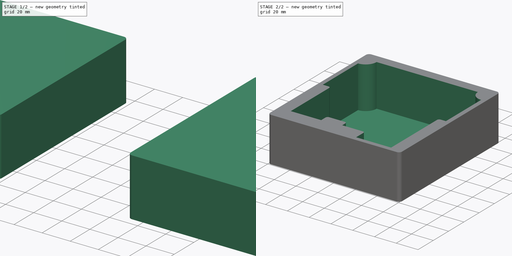
[diagram: build sequence overview — one tinted view per stage of 2, left to right]
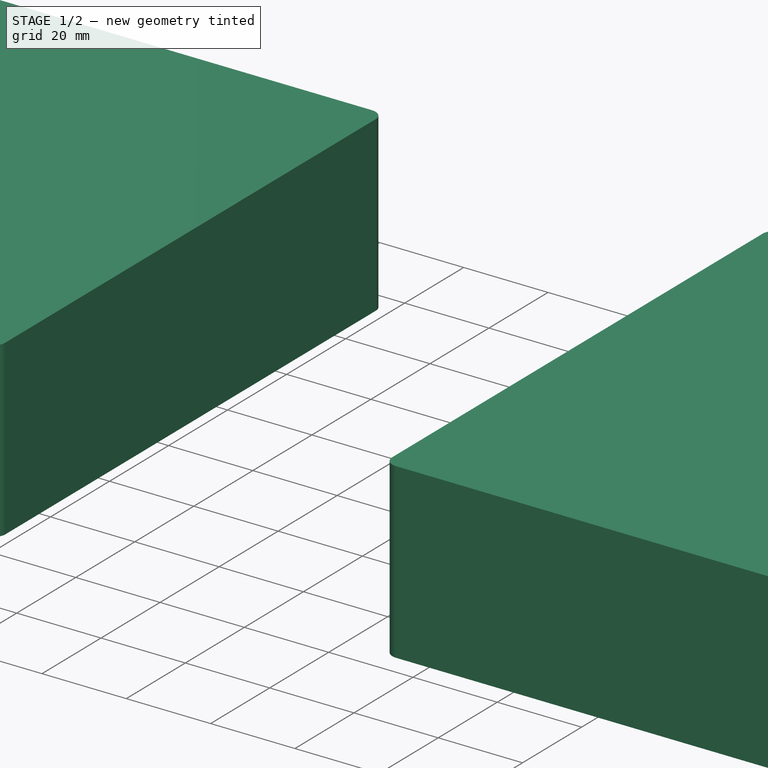
[diagram: stage 1 of 2 — iso view after this stage's code; geometry added in this stage tinted green]
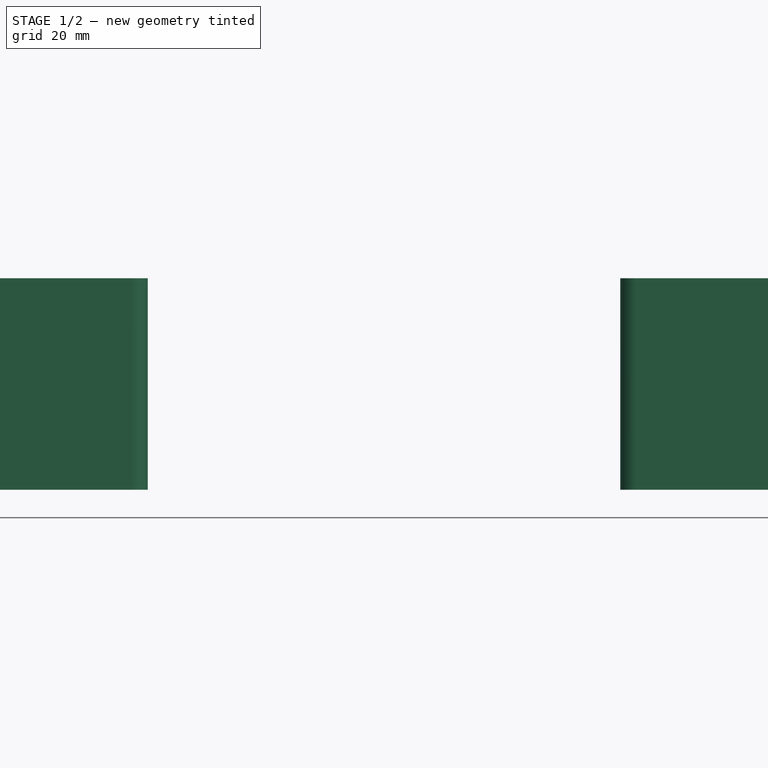
[diagram: stage 1 of 2 — front view after this stage's code; geometry added in this stage tinted green]
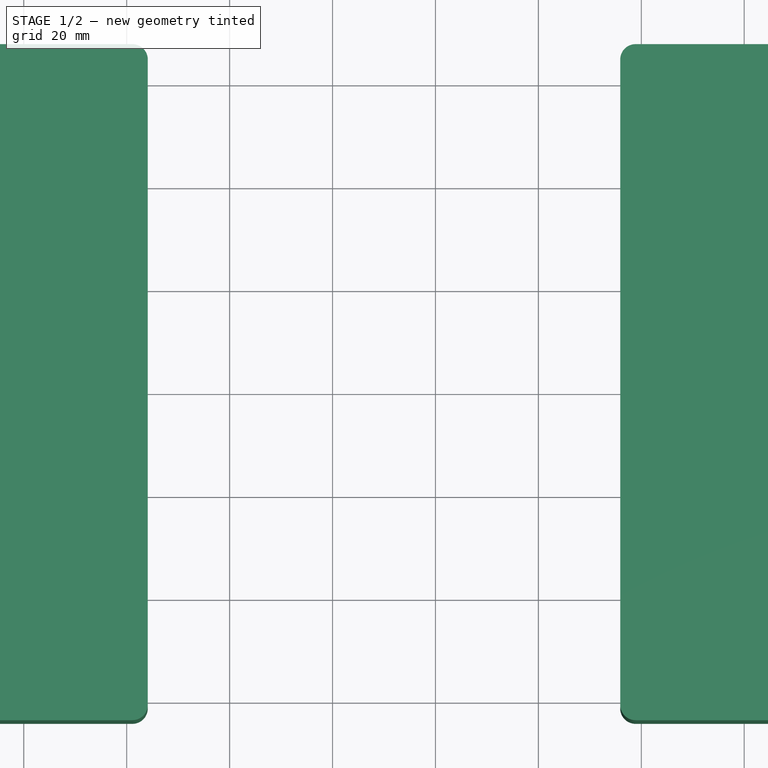
[diagram: stage 1 of 2 — top view after this stage's code; geometry added in this stage tinted green]
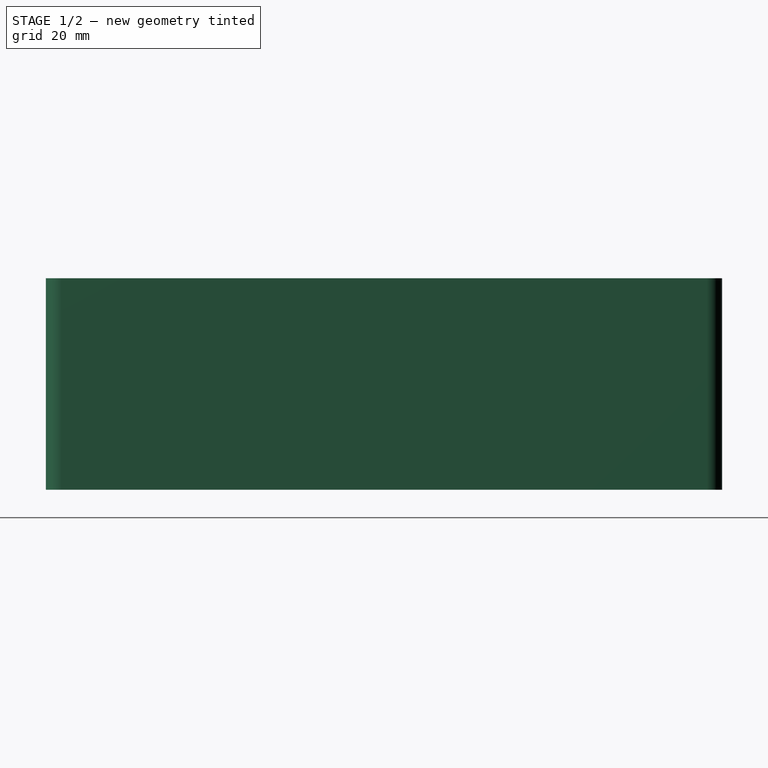
[diagram: stage 1 of 2 — right view after this stage's code; geometry added in this stage tinted green]
FCSTD DOCUMENT  (FreeCAD 1.1R20251104 (Git shallow))
Label: micro-case
License: All rights reserved
LicenseURL: https://en.wikipedia.org/wiki/All_rights_reserved
objects: Sketcher::SketchObject×4, PartDesign::SubShapeBinder×4, PartDesign::Pad×2, PartDesign::Pocket×2, PartDesign::Body×2, App::Point×2, Spreadsheet::Sheet×1
note: 26 computed .brp shape members not serialized (recipe doc carries the construction recipe); baked Part::Feature solids carry a one-line shape summary decoded from their .brp

FEATURE [Sketcher::SketchObject] Sketch  label="Main Cutout"
  ArcFitTolerance = 1e-06
  ExternalTypes = [0]
  FullyConstrained = true
  MakeInternals = false
  MapMode = 5
  expr: Constraints[19] = <<Spreadsheet>>.height + 2 * <<Spreadsheet>>.cutout_margin + <<Spreadsheet>>.cord_height
  expr: Constraints[20] = <<Spreadsheet>>.to_bumper + <<Spreadsheet>>.cutout_margin
  expr: Constraints[21] = (<<Spreadsheet>>.bumper_width - <<Spreadsheet>>.main_width) / 2 - <<Spreadsheet>>.cutout_margin
  expr: Constraints[22] = <<Spreadsheet>>.pinky_x + <<Spreadsheet>>.cutout_margin
  expr: Constraints[23] = <<Spreadsheet>>.ring_y - <<Spreadsheet>>.cutout_margin
  expr: Constraints[24] = <<Spreadsheet>>.pinky_x + <<Spreadsheet>>.ring_x + <<Spreadsheet>>.cutout_margin
  expr: Constraints[25] = <<Spreadsheet>>.ring_y + <<Spreadsheet>>.middle_y - <<Spreadsheet>>.cutout_margin
  expr: Constraints[26] = <<Spreadsheet>>.pinky_x + <<Spreadsheet>>.ring_x + <<Spreadsheet>>.middle_x - <<Spreadsheet>>.cutout_margin
  expr: Constraints[65] = 2.5 * <<Spreadsheet>>.magnet_diameter
  expr: Constraints[67] = <<Spreadsheet>>.bumper_width + 2 * <<Spreadsheet>>.cutout_margin
  expr: Constraints[68] = <<Spreadsheet>>.ring_y + <<Spreadsheet>>.middle_y + <<Spreadsheet>>.index_y - <<Spreadsheet>>.cutout_margin
  expr: Constraints[69] = <<Spreadsheet>>.pinky_x + <<Spreadsheet>>.ring_x + <<Spreadsheet>>.middle_x + <<Spreadsheet>>.index_x + <<Spreadsheet>>.cutout_margin * 2
  sketch-geometry (26):
    g0: LineSegment StartX=0 StartY=62.2 StartZ=0 EndX=4.75 EndY=62.2 EndZ=0
    g1: LineSegment StartX=6.75 StartY=60.2 StartZ=0 EndX=6.75 EndY=0 EndZ=0
    g2: LineSegment StartX=6.75 StartY=0 StartZ=0 EndX=38.85 EndY=0 EndZ=0
    g3: LineSegment StartX=38.85 StartY=0 StartZ=0 EndX=38.85 EndY=9.5 EndZ=0
    g4: LineSegment StartX=40.85 StartY=11.5 StartZ=0 EndX=59.65 EndY=11.5 EndZ=0
    g5: LineSegment StartX=59.65 StartY=11.5 StartZ=0 EndX=59.65 EndY=15.6 EndZ=0
    g6: LineSegment StartX=61.65 StartY=17.6 StartZ=0 EndX=75.85 EndY=17.6 EndZ=0
    g7: LineSegment StartX=77.85 StartY=15.6 StartZ=0 EndX=77.85 EndY=9.9 EndZ=0
    g8: LineSegment StartX=77.85 StartY=9.9 StartZ=0 EndX=105.75 EndY=9.9 EndZ=0
    g9: LineSegment StartX=105.75 StartY=9.9 StartZ=0 EndX=105.75 EndY=60.2 EndZ=0
    g10: LineSegment StartX=107.75 StartY=62.2 StartZ=0 EndX=113 EndY=62.2 EndZ=0
    g11: ArcOfCircle CenterX=4.75 CenterY=60.2 CenterZ=0 NormalX=0 NormalY=0 NormalZ=1 AngleXU=0 Radius=2 StartAngle=0 EndAngle=1.5708
    g12: GeomPoint [constr] X=6.75 Y=62.2 Z=0
    g13: ArcOfCircle CenterX=40.85 CenterY=9.5 CenterZ=0 NormalX=0 NormalY=0 NormalZ=1 AngleXU=0 Radius=2 StartAngle=1.5708 EndAngle=3.14159
    g14: GeomPoint [constr] X=38.85 Y=11.5 Z=0
    g15: ArcOfCircle CenterX=61.65 CenterY=15.6 CenterZ=0 NormalX=0 NormalY=0 NormalZ=1 AngleXU=0 Radius=2 StartAngle=1.5708 EndAngle=3.14159
    g16: GeomPoint [constr] X=59.65 Y=17.6 Z=0
    g17: ArcOfCircle CenterX=75.85 CenterY=15.6 CenterZ=0 NormalX=0 NormalY=0 NormalZ=1 AngleXU=0 Radius=2 StartAngle=0 EndAngle=1.5708
    g18: GeomPoint [constr] X=77.85 Y=17.6 Z=0
    g19: ArcOfCircle CenterX=107.75 CenterY=60.2 CenterZ=0 NormalX=0 NormalY=0 NormalZ=1 AngleXU=0 Radius=2 StartAngle=1.5708 EndAngle=3.14159
    g20: GeomPoint [constr] X=105.75 Y=62.2 Z=0
    g21: ArcOfCircle CenterX=0 CenterY=118.4 CenterZ=0 NormalX=0 NormalY=0 NormalZ=1 AngleXU=0 Radius=10 StartAngle=4.71239 EndAngle=6.28319
    g22: ArcOfCircle CenterX=113 CenterY=118.4 CenterZ=0 NormalX=0 NormalY=0 NormalZ=1 AngleXU=0 Radius=10 StartAngle=3.14159 EndAngle=4.71239
    g23: LineSegment StartX=10 StartY=118.4 StartZ=0 EndX=103 EndY=118.4 EndZ=0
    g24: LineSegment StartX=0 StartY=108.4 StartZ=0 EndX=0 EndY=62.2 EndZ=0
    g25: LineSegment StartX=113 StartY=62.2 StartZ=0 EndX=113 EndY=108.4 EndZ=0
  constraints (70):
    c: PointOnObject(g21,g-2)
    c: PointOnObject(g0,g-2)
    c: Horizontal(g0)
    c: PointOnObject(g1,g-1)
    c: Vertical(g1)
    c: Coincident(g1,g2)
    c: PointOnObject(g2,g-1)
    c: Coincident(g2,g3)
    c: Vertical(g3)
    c: Horizontal(g4)
    c: Coincident(g4,g5)
    c: Vertical(g5)
    c: Horizontal(g6)
    c: Vertical(g7)
    c: Coincident(g7,g8)
    c: Horizontal(g8)
    c: Coincident(g8,g9)
    c: Vertical(g9)
    c: Horizontal(g10)
    c: DistanceY(g-1,g21) = 118.4
    c: DistanceY(g1,g12) = 62.2
    c: Distance(g0,g12) = 6.75
    c: DistanceX(g2,g2) = 32.1
    c: Distance(g3,g14) = 11.5
    c: DistanceX(g1,g4) = 52.9
    c: DistanceY(g1,g16) = 17.6
    c: DistanceX(g1,g18) = 71.1
    c: PointOnObject(g12,g0)
    c: PointOnObject(g12,g1)
    c: Tangent(g0,g11) = 1.5708
    c: Tangent(g1,g11) = 1.5708
    c: PointOnObject(g14,g3)
    c: PointOnObject(g14,g4)
    c: Tangent(g3,g13) = 1.5708
    c: Tangent(g4,g13) = 1.5708
    c: PointOnObject(g16,g5)
    c: PointOnObject(g16,g6)
    c: Tangent(g5,g15) = 1.5708
    c: Tangent(g6,g15) = 1.5708
    c: PointOnObject(g18,g6)
    c: PointOnObject(g18,g7)
    c: Tangent(g6,g17) = 1.5708
    c: Tangent(g7,g17) = 1.5708
    c: PointOnObject(g20,g9)
    c: PointOnObject(g20,g10)
    c: Tangent(g9,g19) = 1.5708
    c: Tangent(g10,g19) = 1.5708
    c: Equal(g19,g11)
    c: Equal(g11,g13)
    c: Equal(g13,g15)
    c: Equal(g15,g17)
    c: Radius(g11) = 2
    c: Equal(g22,g21)
    c: Coincident(g23,g21)
    c: Coincident(g23,g22)
    c: Horizontal(g23)
    c: Coincident(g24,g21)
    c: Coincident(g24,g0)
    c: Vertical(g24)
    c: Horizontal(g21,g21)
    c: Coincident(g25,g10)
    c: Coincident(g25,g22)
    c: Vertical(g25)
    c: Vertical(g22,g22)
    c: Horizontal(g21,g22)
    c: Diameter(g21) = 20
    c: Horizontal(g10,g0)
    c: DistanceX(g21,g22) = 113
    c: Distance(g8,g-1) = 9.9
    c: Distance(g9,g1) = 99
FEATURE [Spreadsheet::Sheet] Spreadsheet
  cells = B1='x mm; C1='y mm; D1='z mm; A2='Width; B2(main_width)=99.1; A3='Bumper width; B3(bumper_width)=112.8; D3(bumper_depth)=30; A4='Cord height; C4(cord_height)=5; A5='Height; C5(height)=113.2; A6='Depth (largest value); D6(depth)=38.7; A7='To bumper from bottom; D7(to_bumper)=62.1; A11='Pinky; B11(pinky_x)=32; C11=0; A12='Ring; B12(ring_x)=20.8; C12(ring_y)=11.6; A13='Middle; B13(middle_x)=18.4; C13(middle_y)=6.1; A14='Index; B14(index_x)=27.6; C14(index_y)=-7.7; A18='Cutout margin; B18(cutout_margin)=0.1; A19='Bottom thickness; B19(bottom_thickness)=2.4; A20='Wall thickness; B20(wall_thickness)=4; A21='Corner fillet radius; B21(corner_fillet)=3; A22='Inner fillet radius; B22(inner_fillet)=1; A24='Magnet diameter; B24(magnet_diameter)=8; A25='Magnet diameter margin; B25(magnet_diameter_margin)=0.1
FEATURE [Sketcher::SketchObject] Sketch001  label="Main Body"
  ArcFitTolerance = 1e-06
  AttachmentSupport = -> [XY_Plane]
  ExternalTypes = [0]
  FullyConstrained = true
  MakeInternals = false
  MapMode = 5
  expr: Constraints[23] = <<Spreadsheet>>.corner_fillet
  expr: Constraints[24] = <<Spreadsheet>>.bumper_width + <<Spreadsheet>>.cutout_margin * 2 + <<Spreadsheet>>.wall_thickness * 2
  expr: Constraints[25] = <<Spreadsheet>>.height + 2.5 * <<Spreadsheet>>.magnet_diameter / 2 + 2 * <<Spreadsheet>>.cutout_margin + 2 * <<Spreadsheet>>.wall_thickness
  expr: Constraints[26] = <<Spreadsheet>>.wall_thickness + <<Spreadsheet>>.cutout_margin
  expr: Constraints[27] = <<Spreadsheet>>.wall_thickness + <<Spreadsheet>>.cutout_margin
  sketch-geometry (12):
    g0: LineSegment StartX=-4.1 StartY=124.3 StartZ=0 EndX=-4.1 EndY=-1.1 EndZ=0
    g1: LineSegment StartX=-1.1 StartY=-4.1 StartZ=0 EndX=113.9 EndY=-4.1 EndZ=0
    g2: LineSegment StartX=116.9 StartY=-1.1 StartZ=0 EndX=116.9 EndY=124.3 EndZ=0
    g3: LineSegment StartX=113.9 StartY=127.3 StartZ=0 EndX=-1.1 EndY=127.3 EndZ=0
    g4: ArcOfCircle CenterX=-1.1 CenterY=124.3 CenterZ=0 NormalX=0 NormalY=0 NormalZ=1 AngleXU=0 Radius=3 StartAngle=1.5708 EndAngle=3.14159
    g5: GeomPoint [constr] X=-4.1 Y=127.3 Z=0
    g6: ArcOfCircle CenterX=113.9 CenterY=124.3 CenterZ=0 NormalX=0 NormalY=0 NormalZ=1 AngleXU=0 Radius=3 StartAngle=-1.8e-15 EndAngle=1.5708
    g7: GeomPoint [constr] X=116.9 Y=127.3 Z=0
    g8: ArcOfCircle CenterX=113.9 CenterY=-1.1 CenterZ=0 NormalX=0 NormalY=0 NormalZ=1 AngleXU=0 Radius=3 StartAngle=4.71239 EndAngle=6.28319
    g9: GeomPoint [constr] X=116.9 Y=-4.1 Z=0
    g10: ArcOfCircle CenterX=-1.1 CenterY=-1.1 CenterZ=0 NormalX=0 NormalY=0 NormalZ=1 AngleXU=0 Radius=3 StartAngle=3.14159 EndAngle=4.71239
    g11: GeomPoint [constr] X=-4.1 Y=-4.1 Z=0
  constraints (28):
    c: Vertical(g0)
    c: Vertical(g2)
    c: Horizontal(g1)
    c: Horizontal(g3)
    c: PointOnObject(g5,g0)
    c: PointOnObject(g5,g3)
    c: Tangent(g0,g4) = -1.5708
    c: Tangent(g3,g4) = -1.5708
    c: PointOnObject(g7,g3)
    c: PointOnObject(g7,g2)
    c: Tangent(g3,g6) = -1.5708
    c: Tangent(g2,g6) = -1.5708
    c: PointOnObject(g9,g2)
    c: PointOnObject(g9,g1)
    c: Tangent(g2,g8) = -1.5708
    c: Tangent(g1,g8) = -1.5708
    c: PointOnObject(g11,g1)
    c: PointOnObject(g11,g0)
    c: Tangent(g1,g10) = -1.5708
    c: Tangent(g0,g10) = -1.5708
    c: Equal(g4,g6)
    c: Equal(g6,g8)
    c: Equal(g8,g10)
    c: Radius(g4) = 3
    c: Distance(g2,g0) = 121
    c: Distance(g3,g1) = 131.4
    c: Distance(g-2,g0) = 4.1
    c: Distance(g1,g-1) = 4.1
FEATURE [Sketcher::SketchObject] Sketch003  label="Smoothing Profile"
  ArcFitTolerance = 1e-06
  AttachmentOffset = pos=(0,0,-83) rot=(0,0,1;0rad)
  ExternalTypes = [0]
  FullyConstrained = false
  MakeInternals = false
  MapMode = 5
  Placement = pos=(0,83,-1.84e-14) rot=(1,0,0;1.5708rad)
  sketch-geometry (3):
    g0: LineSegment StartX=-0.919051 StartY=0 StartZ=0 EndX=-2.49e-14 EndY=0 EndZ=0
    g1: LineSegment StartX=-2.49e-14 StartY=0 StartZ=0 EndX=-2.49e-14 EndY=-0.993105 EndZ=0
    g2: ArcOfCircle CenterX=-1.00681 CenterY=-1.00302 CenterZ=0 NormalX=0 NormalY=0 NormalZ=1 AngleXU=0 Radius=1.00686 StartAngle=0.00985222 EndAngle=1.48353
  constraints (6):
    c: PointOnObject(g0,g-1)
    c: Coincident(g0,g-1)
    c: Coincident(g0,g1)
    c: Vertical(g1)
    c: Coincident(g2,g0)
    c: Coincident(g2,g1)
FEATURE [PartDesign::SubShapeBinder] Binder  label="MainBodyBinder"
  BindCopyOnChange = 0
  BindMode = 0
  ClaimChildren = false
  Context = -> Body [Binder.]
  Fuse = false
  MakeFace = false
  OffsetFill = false
  OffsetIntersection = false
  OffsetJoinType = 0
  OffsetOpenResult = false
  PartialLoad = false
  Refine = true
  Relative = true
  Support = -> [Sketch001]
  _Version = 2
FEATURE [PartDesign::SubShapeBinder] Binder001  label="MainCutoutBinder"
  BindCopyOnChange = 0
  BindMode = 0
  ClaimChildren = false
  Context = -> Body [Binder001.]
  Fuse = false
  MakeFace = false
  OffsetFill = false
  OffsetIntersection = false
  OffsetJoinType = 0
  OffsetOpenResult = false
  PartialLoad = false
  Refine = true
  Relative = true
  Support = -> [Sketch]
  _Version = 2
FEATURE [PartDesign::Pad] Pad
  Direction = (0,0,1)
  Length = 41.1
  Length2 = 10
  Profile = -> Binder
  Refine = true
  Reversed = true
  SideType = 0
  Suppressed = false
  Type = 0
  Type2 = 0
  expr: Length = <<Spreadsheet>>.depth + <<Spreadsheet>>.bottom_thickness
FEATURE [PartDesign::Body] Body  label="Right Part"
  AllowCompound = false
  Group = -> [Binder,Binder001,Pad,Pocket]
  Origin = -> Origin
  Tip = -> Pocket
FEATURE [PartDesign::SubShapeBinder] Binder002  label="MainBodyBinder001"
  BindCopyOnChange = 0
  BindMode = 0
  ClaimChildren = false
  Context = -> Body001 [Binder002.]
  Fuse = false
  MakeFace = false
  OffsetFill = false
  OffsetIntersection = false
  OffsetJoinType = 0
  OffsetOpenResult = false
  PartialLoad = false
  Placement = pos=(-100,0,0) rot=(0,1,0;3.14159rad)
  Refine = true
  Relative = true
  Support = -> [Sketch001]
  _Version = 2
FEATURE [PartDesign::SubShapeBinder] Binder003  label="MainCutoutBinder001"
  BindCopyOnChange = 0
  BindMode = 0
  ClaimChildren = false
  Context = -> Body001 [Binder003.]
  Fuse = false
  MakeFace = false
  OffsetFill = false
  OffsetIntersection = false
  OffsetJoinType = 0
  OffsetOpenResult = false
  PartialLoad = false
  Placement = pos=(-100,0,-6.1e-15) rot=(0,1,0;3.14159rad)
  Refine = true
  Relative = true
  Support = -> [Body[Binder001.]]
  _Version = 2
FEATURE [PartDesign::Pad] Pad001
  Direction = (0,0,1)
  Length = 41.1
  Length2 = 10
  Placement = pos=(-100,0,0) rot=(0,1,0;3.14159rad)
  Profile = -> Binder002
  Refine = true
  Reversed = true
  SideType = 0
  Suppressed = false
  Type = 0
  Type2 = 0
  expr: Length = <<Spreadsheet>>.depth + <<Spreadsheet>>.bottom_thickness
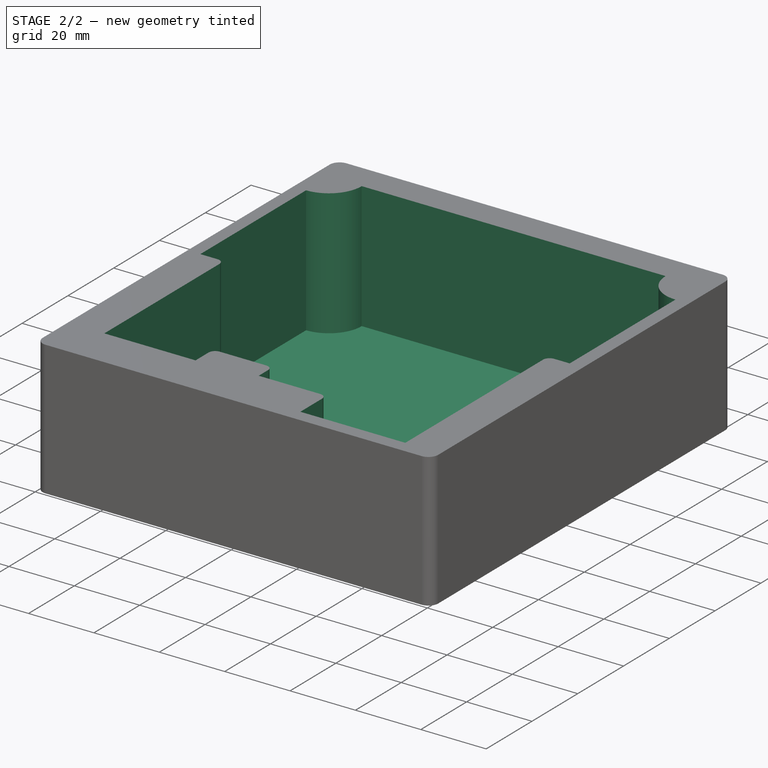
[diagram: stage 2 of 2 — iso view after this stage's code; geometry added in this stage tinted green]
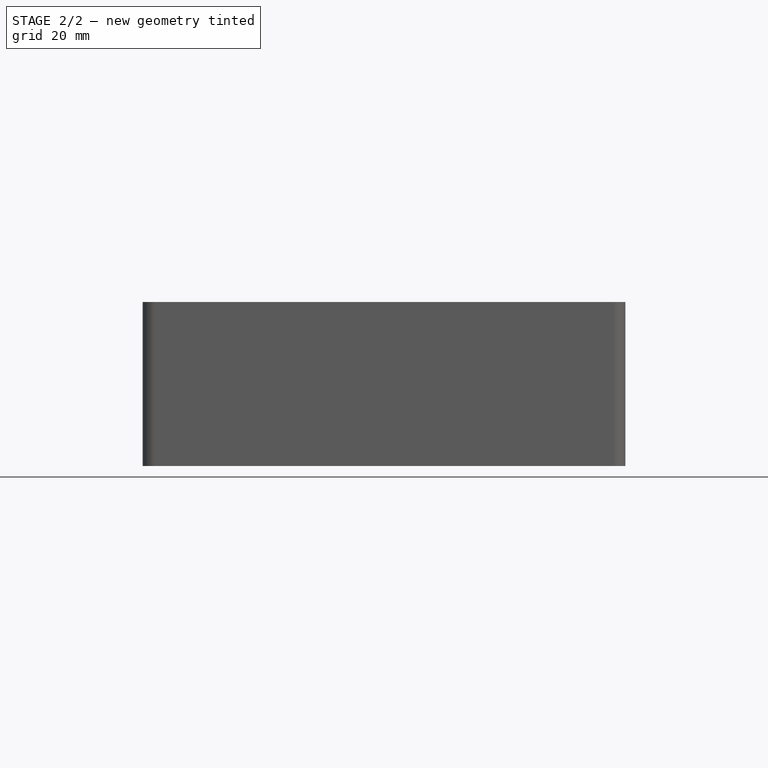
[diagram: stage 2 of 2 — front view after this stage's code; geometry added in this stage tinted green]
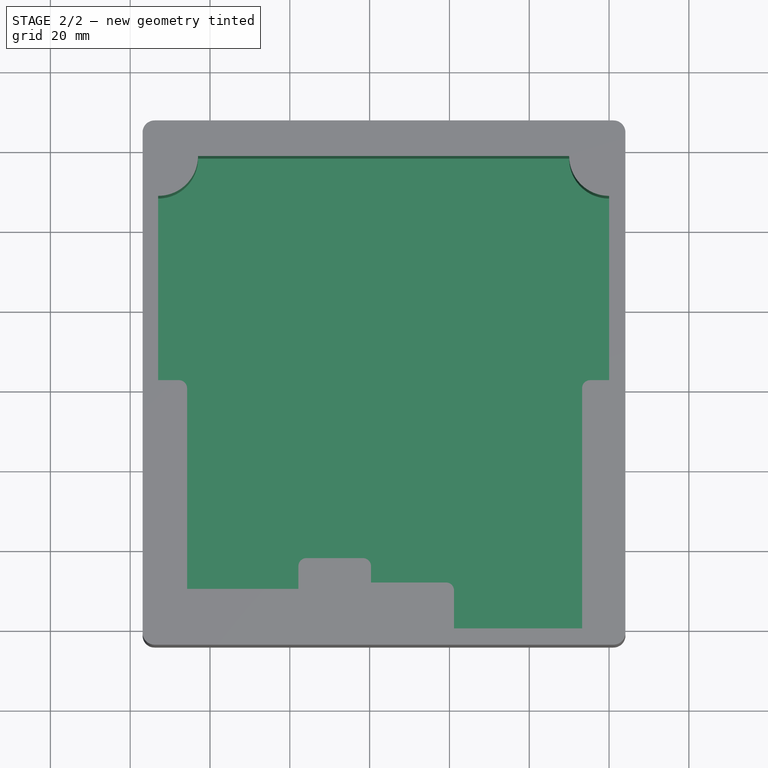
[diagram: stage 2 of 2 — top view after this stage's code; geometry added in this stage tinted green]
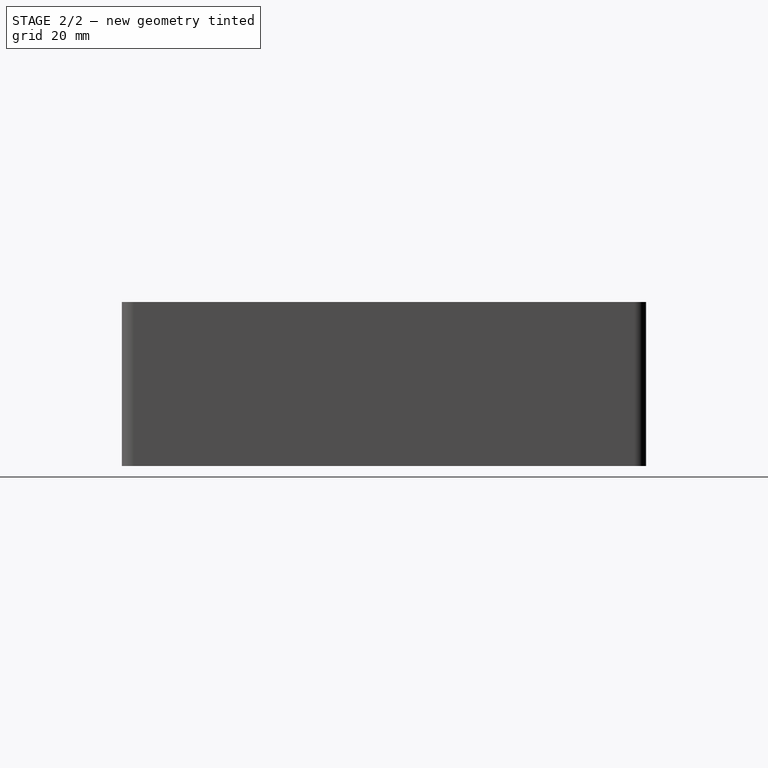
[diagram: stage 2 of 2 — right view after this stage's code; geometry added in this stage tinted green]
FEATURE [PartDesign::Pocket] Pocket
  BaseFeature = -> Pad
  Direction = (0,0,-1)
  Length = 38.7
  Length2 = 5
  Profile = -> Binder001
  Refine = true
  SideType = 0
  Suppressed = false
  Type = 0
  Type2 = 0
  expr: Length = <<Spreadsheet>>.depth
FEATURE [PartDesign::Pocket] Pocket001
  BaseFeature = -> Pad001
  Direction = (0,0,-1)
  Length = 38.7
  Length2 = 5
  Placement = pos=(-100,0,0) rot=(0,1,0;3.14159rad)
  Profile = -> Binder003
  Refine = true
  SideType = 0
  Suppressed = false
  Type = 0
  Type2 = 0
  expr: Length = <<Spreadsheet>>.depth
FEATURE [PartDesign::Body] Body001  label="Left Part"
  AllowCompound = false
  Group = -> [Binder002,Binder003,Pad001,Pocket001]
  Origin = -> Origin001
  Tip = -> Pocket001
FEATURE [Sketcher::SketchObject] Sketch004  label="Magnet Inserts"
  ArcFitTolerance = 1e-06
  AttachmentOffset = pos=(0,0,-0.4) rot=(0,0,1;0rad)
  AttachmentSupport = -> [XY_Plane]
  ExternalTypes = [0]
  FullyConstrained = false
  MakeInternals = false
  MapMode = 5
  Placement = pos=(0,0,-0.4) rot=(0,0,1;0rad)
  expr: Constraints[0] = <<Spreadsheet>>.magnet_diameter + <<Spreadsheet>>.magnet_diameter_margin
  sketch-geometry (4):
    g0: Circle CenterX=45.2378 CenterY=5.02216 CenterZ=0 NormalX=0 NormalY=0 NormalZ=1 AngleXU=0 Radius=4.05
    g1: Circle CenterX=1.31921 CenterY=116.789 CenterZ=0 NormalX=0 NormalY=0 NormalZ=1 AngleXU=0 Radius=4.05
    g2: Circle CenterX=110.67 CenterY=116.389 CenterZ=0 NormalX=0 NormalY=0 NormalZ=1 AngleXU=0 Radius=4.05
    g3: Circle CenterX=110.334 CenterY=2.44595 CenterZ=0 NormalX=0 NormalY=0 NormalZ=1 AngleXU=0 Radius=4.05
  constraints (4):
    c: Diameter(g0) = 8.1
    c: Equal(g1,g2)
    c: Equal(g2,g3)
    c: Equal(g3,g0)
FEATURE [App::Point] Origin002  label="Origin"
  Role = Origin
FEATURE [App::Point] Origin003  label="Origin"
  Role = Origin
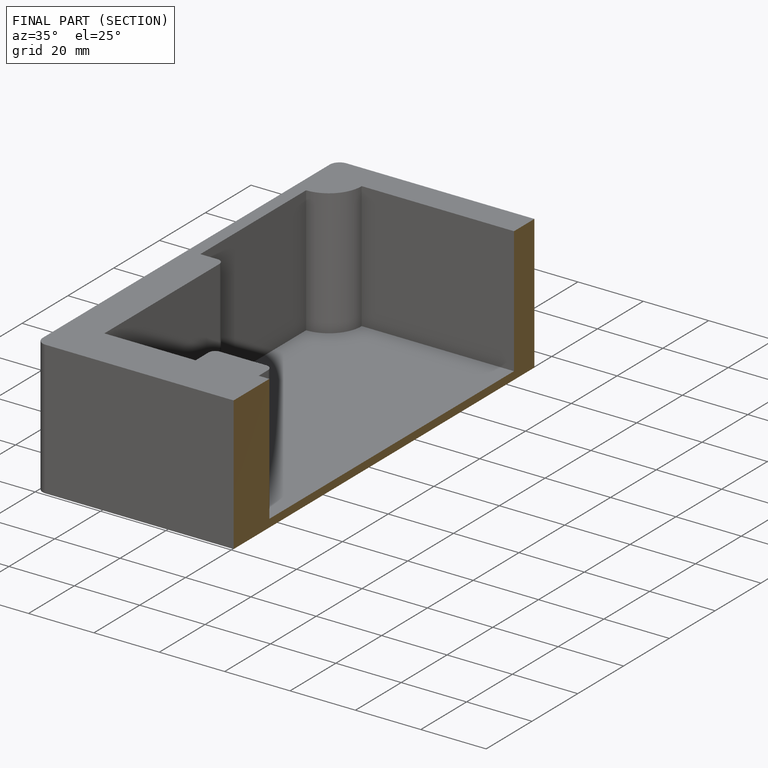
[diagram: finished part — half-section view (interior)]
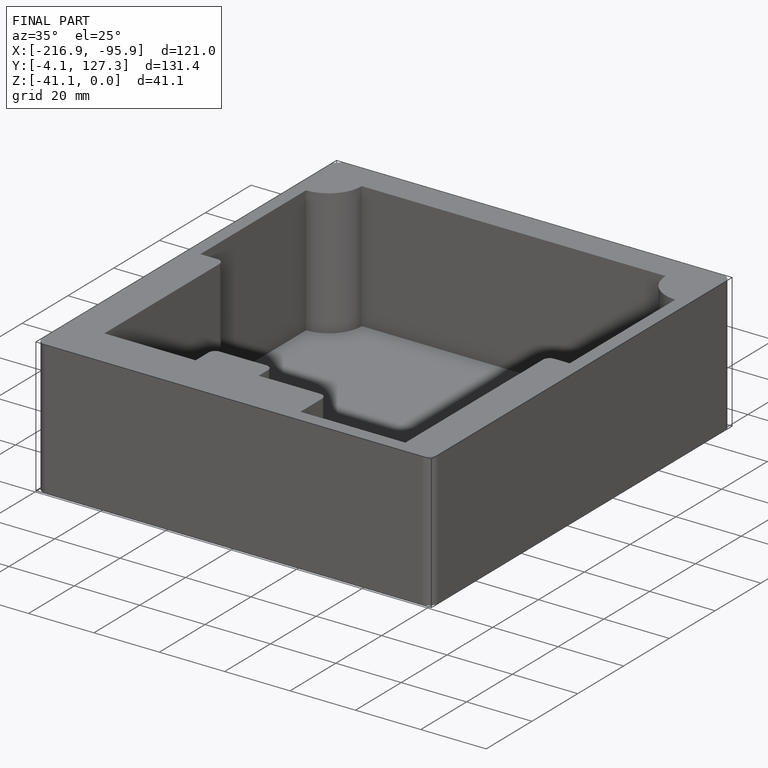
[diagram: finished part — iso view with bounding-box wireframe]
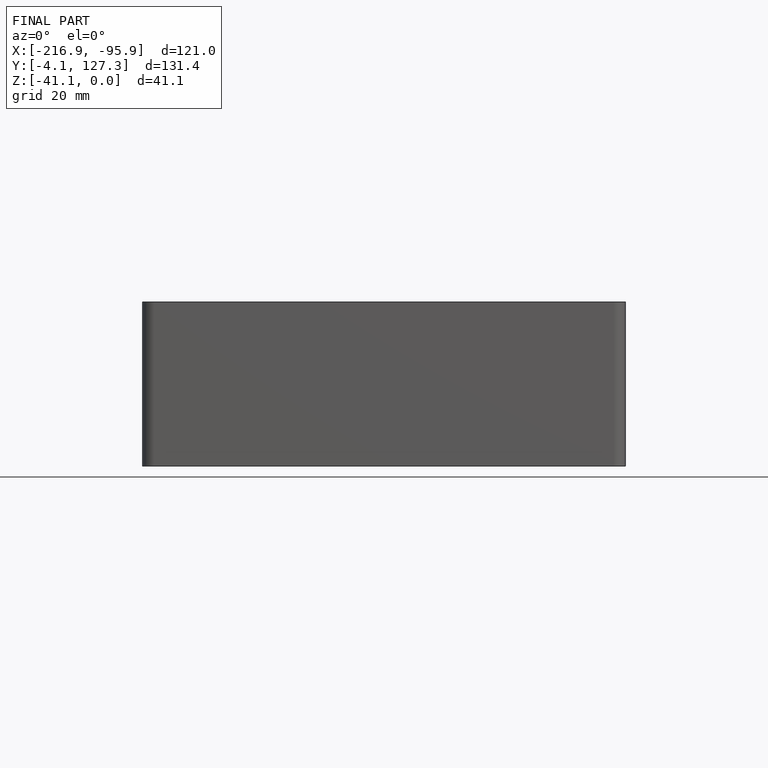
[diagram: finished part — front view with bounding-box wireframe]
